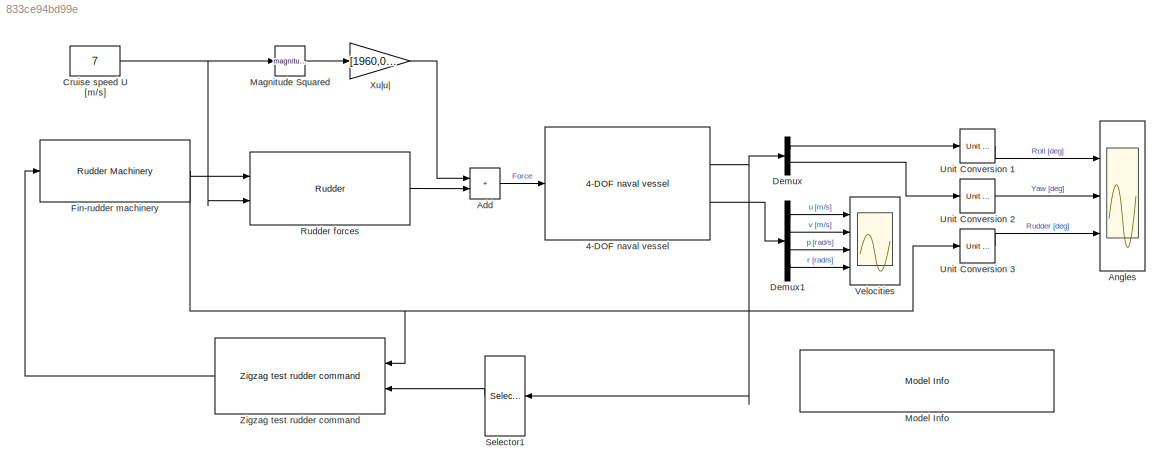
MODEL slx_833ce94bd99e
KIND model
CONFIG AbsTol = auto
CONFIG EnableMultiTasking = on
CONFIG FixedStep = auto
CONFIG MaxStep = auto
CONFIG MinStep = auto
CONFIG RelTol = 1e-5
CONFIG SampleTimeConstraint = Unconstrained
CONFIG SolverName = ode45
CONFIG StartTime = 0.0
CONFIG StopTime = 200
BLOCK [Reference] 4-DOF naval vessel  REF=mssSimulink/Marine craft models/4-DOF naval vessel
  Ports = [1, 2]
  SourceBlock = mssSimulink/Marine craft models/4-DOF naval vessel
  SourceType = Naval Vessel Nonlinear Manoeuvring Model
BLOCK [Sum] Add
  IconShape = rectangular
  Ports = [2, 1]
BLOCK [Scope] Angles
  Floating = off
  NumInputPorts = 3
  Ports = [3]
  ScopeSpecificationString = Simulink.scopes.TimeScopeBlockCfg('CurrentConfiguration', extmgr.ConfigurationSet(extmgr.Configuration('Core','General UI',true),extmgr.Configuration('Core','Source UI',true),extmgr.Configuration('Sources','WiredSimulink',true,'DataLoggingSaveFormat','StructureWithTime','DataLoggingLimitDataPoints',true,'DataLoggingDecimation','1','DataLoggingDecimateData',true),extmgr.Configuration('Visuals','Tim...<+3110ch>
BLOCK [Constant] Cruise speed U [m//s]
  Value = 7
BLOCK [Demux] Demux
  Outputs = 2
  Ports = [1, 2]
BLOCK [Demux] Demux1
  Ports = [1, 4]
BLOCK [Reference] Fin-rudder machinery   REF=mssSimulink/Modelling/Control Surfaces/Fin//Rudder Machinery
  Ports = [1, 1]
  SourceBlock = mssSimulink/Modelling/Control Surfaces/Fin//Rudder Machinery
  SourceType = Rudder Machinery
BLOCK [Math] Magnitude Squared 
  Operator = magnitude^2
  Ports = [1, 1]
BLOCK [Reference] Model Info  REF=simulink/Model-Wide
Utilities/Model Info
  Ports = []
  SourceBlock = simulink/Model-Wide\nUtilities/Model Info
  SourceProductBaseCode = SL
  SourceType = CMBlock
BLOCK [Reference] Rudder forces  REF=mssSimulink/Modelling/Control Surfaces/Rudder
  Ports = [2, 1]
  SourceBlock = mssSimulink/Modelling/Control Surfaces/Rudder
  SourceType = Rudder Model
BLOCK [Selector] Selector1
  IndexOptions = Index vector (dialog)
  Indices = [2]
  InputPortWidth = 2
  OutputSizes = 1
  Ports = [1, 1]
BLOCK [Reference] Unit Conversion 1  REF=mssSimulink/Utilities/Math Operations/Unit Conversion
  Ports = [1, 1]
  SourceBlock = mssSimulink/Utilities/Math Operations/Unit Conversion
  SourceType = Unit Conversion
BLOCK [Reference] Unit Conversion 2  REF=mssSimulink/Utilities/Math Operations/Unit Conversion
  Ports = [1, 1]
  SourceBlock = mssSimulink/Utilities/Math Operations/Unit Conversion
  SourceType = Unit Conversion
BLOCK [Reference] Unit Conversion 3  REF=mssSimulink/Utilities/Math Operations/Unit Conversion
  Ports = [1, 1]
  SourceBlock = mssSimulink/Utilities/Math Operations/Unit Conversion
  SourceType = Unit Conversion
BLOCK [Scope] Velocities
  Floating = off
  NumInputPorts = 4
  Ports = [4]
  ScopeSpecificationString = Simulink.scopes.TimeScopeBlockCfg('CurrentConfiguration', extmgr.ConfigurationSet(extmgr.Configuration('Core','General UI',true),extmgr.Configuration('Core','Source UI',true),extmgr.Configuration('Sources','WiredSimulink',true,'DataLoggingVariableName','ScopeData1','DataLoggingSaveFormat','StructureWithTime','DataLoggingLimitDataPoints',true,'DataLoggingDecimation','1','DataLoggingDecimateData',tr...<+3824ch>
BLOCK [Gain] Xu|u|
  Gain = [1960,0,0,0]'
  Multiplication = Matrix(K*u)
BLOCK [Reference] Zigzag test rudder command   REF=mssSimulink/Guidance/Zigzag test
rudder command

  Ports = [2, 1]
  SourceBlock = mssSimulink/Guidance/Zigzag test\nrudder command
  SourceType = Z- Manoeuvre test or Zig-Zag test
NET 4-DOF naval vessel:1 -> Demux:1, Selector1:1
LINE 4-DOF naval vessel:2 -> Demux1:1
LINE Add:1 -> 4-DOF naval vessel:1
NET Cruise speed U [m//s]:1 -> Magnitude Squared :1, Rudder forces:2
LINE Demux1:1 -> Velocities:1
LINE Demux1:2 -> Velocities:2
LINE Demux1:3 -> Velocities:3
LINE Demux1:4 -> Velocities:4
LINE Demux:1 -> Unit Conversion 1:1
LINE Demux:2 -> Unit Conversion 2:1
NET Fin-rudder machinery :1 -> Rudder forces:1, Unit Conversion 3:1, Zigzag test rudder command :1
LINE Magnitude Squared :1 -> Xu|u|:1
LINE Rudder forces:1 -> Add:2
LINE Selector1:1 -> Zigzag test rudder command :2
LINE Unit Conversion 1:1 -> Angles:1
LINE Unit Conversion 2:1 -> Angles:2
LINE Unit Conversion 3:1 -> Angles:3
LINE Xu|u|:1 -> Add:1
LINE Zigzag test rudder command :1 -> Fin-rudder machinery :1
note: NET lines group one-source signal fan-out (src -> all destinations, sorted); 1:1 wires keep LINE
